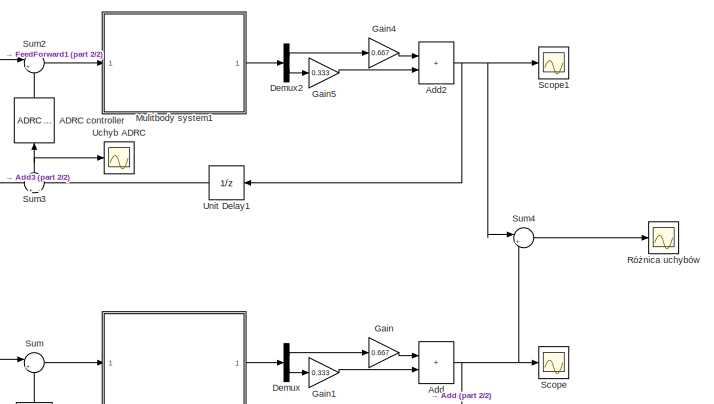
[diagram: root canvas - part 1/2, middle right region]
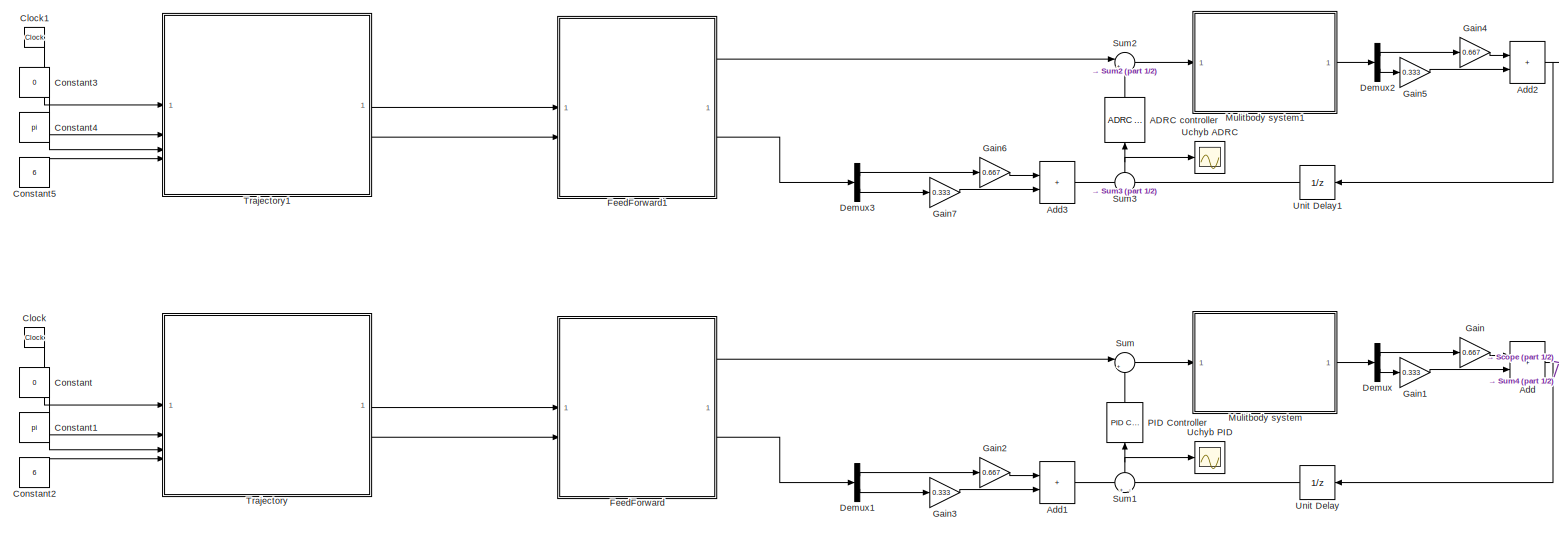
[diagram: root canvas - part 2/2, most of the canvas]
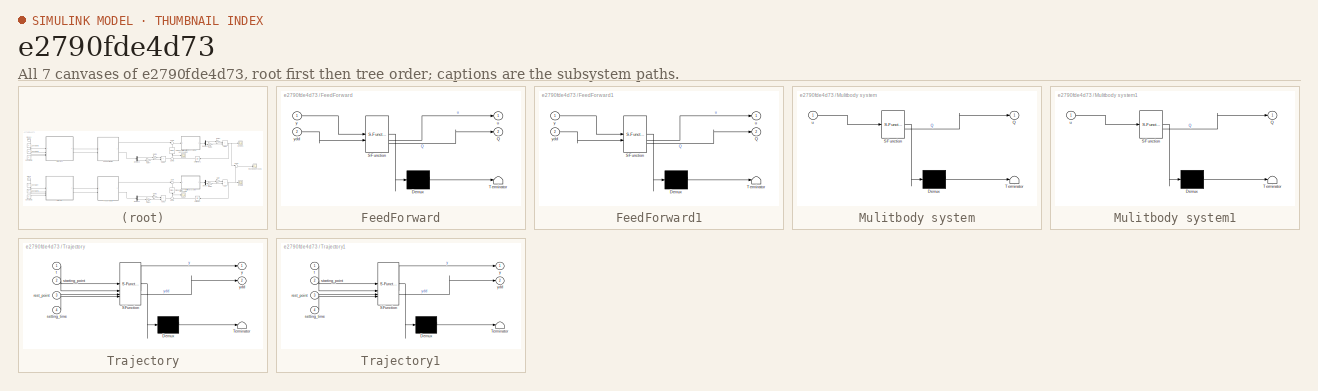
[diagram: thumbnail index - all 7 canvases of the model, root first then tree order]
MODEL slx_e2790fde4d73
KIND model
CONFIG AbsTol = auto
CONFIG EnableMultiTasking = off
CONFIG FixedStep = 0.01
CONFIG MaxStep = 0.01
CONFIG MinStep = 0.001
CONFIG RelTol = 1e-3
CONFIG SampleTimeConstraint = Unconstrained
CONFIG SolverName = ode1be
CONFIG StartTime = 0.0
CONFIG StopTime = 10.0
BLOCK [Reference] ADRC controller  REF=adrc_toolbox_library/ADRC controller
  NameLocation = right
  SourceBlock = adrc_toolbox_library/ADRC controller
  SourceProductName = ADRC Toolbox
  SourceType = ADRC controller
BLOCK [Sum] Add
  IconShape = rectangular
BLOCK [Sum] Add1
  IconShape = rectangular
BLOCK [Sum] Add2
  IconShape = rectangular
BLOCK [Sum] Add3
  IconShape = rectangular
BLOCK [Clock] Clock
  Decimation = 1
BLOCK [Clock] Clock1
  Decimation = 1
BLOCK [Constant] Constant
  Value = 0
BLOCK [Constant] Constant1
  Value = pi
BLOCK [Constant] Constant2
  Value = 6
BLOCK [Constant] Constant3
  Value = 0
BLOCK [Constant] Constant4
  Value = pi
BLOCK [Constant] Constant5
  Value = 6
BLOCK [Demux] Demux
  Outputs = 2
BLOCK [Demux] Demux1
  Outputs = 2
BLOCK [Demux] Demux2
  Outputs = 2
BLOCK [Demux] Demux3
  Outputs = 2
BLOCK [SubSystem] FeedForward
  ErrorFcn = Stateflow.Translate.translate
  PermitHierarchicalResolution = ExplicitOnly
  SFBlockType = MATLAB Function
  TreatAsAtomicUnit = on
BLOCK [Demux] FeedForward/ Demux 
  Outputs = 1
BLOCK [S-Function] FeedForward/ SFunction 
  EnableBusSupport = on
  FunctionName = sf_sfun
  PortCounts = [2 3]
  SFcnIsStateOwnerBlock = off
  SFunctionDeploymentMode = off
  Tag = Stateflow S-Function 1
BLOCK [Terminator] FeedForward/ Terminator 
BLOCK [Outport] FeedForward/Q
  Port = 2
BLOCK [Outport] FeedForward/u
BLOCK [Inport] FeedForward/y
BLOCK [Inport] FeedForward/ydd
  Port = 2
BLOCK [SubSystem] FeedForward1
  ErrorFcn = Stateflow.Translate.translate
  PermitHierarchicalResolution = ExplicitOnly
  SFBlockType = MATLAB Function
  TreatAsAtomicUnit = on
BLOCK [Demux] FeedForward1/ Demux 
  Outputs = 1
BLOCK [S-Function] FeedForward1/ SFunction 
  EnableBusSupport = on
  FunctionName = sf_sfun
  PortCounts = [2 3]
  SFcnIsStateOwnerBlock = off
  SFunctionDeploymentMode = off
  Tag = Stateflow S-Function 4
BLOCK [Terminator] FeedForward1/ Terminator 
BLOCK [Outport] FeedForward1/Q
  Port = 2
BLOCK [Outport] FeedForward1/u
BLOCK [Inport] FeedForward1/y
BLOCK [Inport] FeedForward1/ydd
  Port = 2
BLOCK [Gain] Gain
  Gain = 0.667
BLOCK [Gain] Gain1
  Gain = 0.333
BLOCK [Gain] Gain2
  Gain = 0.667
BLOCK [Gain] Gain3
  Gain = 0.333
BLOCK [Gain] Gain4
  Gain = 0.667
BLOCK [Gain] Gain5
  Gain = 0.333
BLOCK [Gain] Gain6
  Gain = 0.667
BLOCK [Gain] Gain7
  Gain = 0.333
BLOCK [SubSystem] Mulitbody system
  ErrorFcn = Stateflow.Translate.translate
  PermitHierarchicalResolution = ExplicitOnly
  SFBlockType = MATLAB Function
  TreatAsAtomicUnit = on
BLOCK [Demux] Mulitbody system/ Demux 
  Outputs = 1
BLOCK [S-Function] Mulitbody system/ SFunction 
  EnableBusSupport = on
  FunctionName = sf_sfun
  PortCounts = [1 2]
  SFcnIsStateOwnerBlock = off
  SFunctionDeploymentMode = off
  Tag = Stateflow S-Function 3
BLOCK [Terminator] Mulitbody system/ Terminator 
BLOCK [Outport] Mulitbody system/Q
BLOCK [Inport] Mulitbody system/u
BLOCK [SubSystem] Mulitbody system1
  ErrorFcn = Stateflow.Translate.translate
  PermitHierarchicalResolution = ExplicitOnly
  SFBlockType = MATLAB Function
  TreatAsAtomicUnit = on
BLOCK [Demux] Mulitbody system1/ Demux 
  Outputs = 1
BLOCK [S-Function] Mulitbody system1/ SFunction 
  EnableBusSupport = on
  FunctionName = sf_sfun
  PortCounts = [1 2]
  SFcnIsStateOwnerBlock = off
  SFunctionDeploymentMode = off
  Tag = Stateflow S-Function 5
BLOCK [Terminator] Mulitbody system1/ Terminator 
BLOCK [Outport] Mulitbody system1/Q
BLOCK [Inport] Mulitbody system1/u
BLOCK [Reference] PID Controller  REF=slpidlib/PID Controller
  LibrarySourceBlock = simulink/Continuous/PID Controller
  NameLocation = right
  SourceBlock = slpidlib/PID Controller
  SourceType = PID 1dof
BLOCK [Scope] Różnica uchybów
  Floating = off
  NumInputPorts = 1
  ScopeSpecificationString = Simulink.scopes.TimeScopeBlockCfg('CurrentConfiguration', extmgr.ConfigurationSet(extmgr.Configuration('Core','General UI',true),extmgr.Configuration('Core','Source UI',true),extmgr.Configuration('Sources','WiredSimulink',true,'DataLoggingVariableName','ScopeData2'),extmgr.Configuration('Visuals','Time Domain',true,'SerializedDisplays',{struct('MinYLimReal','-0.00118','MaxYLimReal','0.00119','YLab...<+1482ch>
BLOCK [Scope] Scope
  Floating = off
  NumInputPorts = 1
  ScopeSpecificationString = Simulink.scopes.TimeScopeBlockCfg('CurrentConfiguration', extmgr.ConfigurationSet(extmgr.Configuration('Core','General UI',true),extmgr.Configuration('Core','Source UI',true),extmgr.Configuration('Sources','WiredSimulink',true),extmgr.Configuration('Visuals','Time Domain',true,'SerializedDisplays',{struct('MinYLimReal','-0.39273','MaxYLimReal','3.5346','YLabelReal','','MinYLimMag','0.00000','MaxYL...<+1408ch>
BLOCK [Scope] Scope1
  Floating = off
  NumInputPorts = 1
  ScopeSpecificationString = Simulink.scopes.TimeScopeBlockCfg('CurrentConfiguration', extmgr.ConfigurationSet(extmgr.Configuration('Core','General UI',true),extmgr.Configuration('Core','Source UI',true),extmgr.Configuration('Sources','WiredSimulink',true,'DataLoggingVariableName','ScopeData1'),extmgr.Configuration('Visuals','Time Domain',true,'SerializedDisplays',{struct('MinYLimReal','-0.39273','MaxYLimReal','3.5346','YLabe...<+1447ch>
BLOCK [Sum] Sum
  Inputs = |++
BLOCK [Sum] Sum1
  Inputs = +|-
  NameLocation = right
BLOCK [Sum] Sum2
  Inputs = |++
BLOCK [Sum] Sum3
  Inputs = +|-
  NameLocation = right
BLOCK [Sum] Sum4
  Inputs = |+-
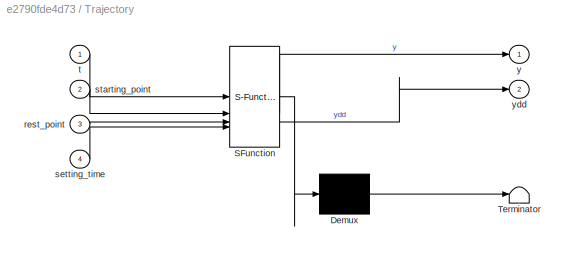
BLOCK [SubSystem] Trajectory
  ErrorFcn = Stateflow.Translate.translate
  PermitHierarchicalResolution = ExplicitOnly
  SFBlockType = MATLAB Function
  TreatAsAtomicUnit = on
BLOCK [Demux] Trajectory/ Demux 
  Outputs = 1
BLOCK [S-Function] Trajectory/ SFunction 
  EnableBusSupport = on
  FunctionName = sf_sfun
  PortCounts = [4 3]
  SFcnIsStateOwnerBlock = off
  SFunctionDeploymentMode = off
  Tag = Stateflow S-Function 2
BLOCK [Terminator] Trajectory/ Terminator 
BLOCK [Inport] Trajectory/rest_point
  Port = 3
BLOCK [Inport] Trajectory/setting_time
  Port = 4
BLOCK [Inport] Trajectory/starting_point
  Port = 2
BLOCK [Inport] Trajectory/t
BLOCK [Outport] Trajectory/y
BLOCK [Outport] Trajectory/ydd
  Port = 2
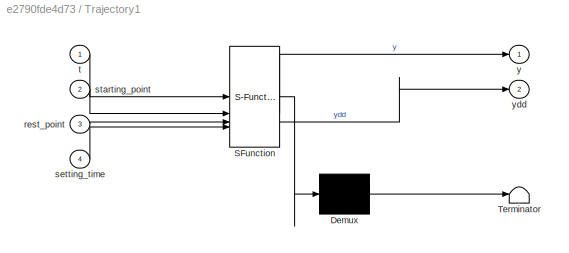
BLOCK [SubSystem] Trajectory1
  ErrorFcn = Stateflow.Translate.translate
  PermitHierarchicalResolution = ExplicitOnly
  SFBlockType = MATLAB Function
  TreatAsAtomicUnit = on
BLOCK [Demux] Trajectory1/ Demux 
  Outputs = 1
BLOCK [S-Function] Trajectory1/ SFunction 
  EnableBusSupport = on
  FunctionName = sf_sfun
  PortCounts = [4 3]
  SFcnIsStateOwnerBlock = off
  SFunctionDeploymentMode = off
  Tag = Stateflow S-Function 6
BLOCK [Terminator] Trajectory1/ Terminator 
BLOCK [Inport] Trajectory1/rest_point
  Port = 3
BLOCK [Inport] Trajectory1/setting_time
  Port = 4
BLOCK [Inport] Trajectory1/starting_point
  Port = 2
BLOCK [Inport] Trajectory1/t
BLOCK [Outport] Trajectory1/y
BLOCK [Outport] Trajectory1/ydd
  Port = 2
BLOCK [Scope] Uchyb ADRC
  Floating = off
  NumInputPorts = 1
  ScopeSpecificationString = Simulink.scopes.TimeScopeBlockCfg('CurrentConfiguration', extmgr.ConfigurationSet(extmgr.Configuration('Core','General UI',true),extmgr.Configuration('Core','Source UI',true),extmgr.Configuration('Sources','WiredSimulink',true,'DataLoggingVariableName','ScopeData4'),extmgr.Configuration('Visuals','Time Domain',true,'SerializedDisplays',{struct('MinYLimReal','-0.00024','MaxYLimReal','0.00021','YLab...<+1482ch>
BLOCK [Scope] Uchyb PID
  Floating = off
  NumInputPorts = 1
  ScopeSpecificationString = Simulink.scopes.TimeScopeBlockCfg('CurrentConfiguration', extmgr.ConfigurationSet(extmgr.Configuration('Core','General UI',true),extmgr.Configuration('Core','Source UI',true),extmgr.Configuration('Sources','WiredSimulink',true,'DataLoggingVariableName','ScopeData3'),extmgr.Configuration('Visuals','Time Domain',true,'SerializedDisplays',{struct('MinYLimReal','-0.001','MaxYLimReal','0.0011','YLabelR...<+1474ch>
BLOCK [UnitDelay] Unit Delay
  HasFrameUpgradeWarning = on
  SampleTime = -1
BLOCK [UnitDelay] Unit Delay1
  HasFrameUpgradeWarning = on
  SampleTime = -1
LINE ADRC controller:1 -> Sum2:2
LINE Add1:1 -> Sum1:1
NET Add2:1 -> Scope1:1, Sum4:1, Unit Delay1:1
LINE Add3:1 -> Sum3:1
NET Add:1 -> Scope:1, Sum4:2, Unit Delay:1
LINE Clock1:1 -> Trajectory1:1
LINE Clock:1 -> Trajectory:1
LINE Constant1:1 -> Trajectory:3
LINE Constant2:1 -> Trajectory:4
LINE Constant3:1 -> Trajectory1:2
LINE Constant4:1 -> Trajectory1:3
LINE Constant5:1 -> Trajectory1:4
LINE Constant:1 -> Trajectory:2
LINE Demux1:1 -> Gain2:1
LINE Demux1:2 -> Gain3:1
LINE Demux2:1 -> Gain4:1
LINE Demux2:2 -> Gain5:1
LINE Demux3:1 -> Gain6:1
LINE Demux3:2 -> Gain7:1
LINE Demux:1 -> Gain:1
LINE Demux:2 -> Gain1:1
LINE FeedForward1:1 -> Sum2:1
LINE FeedForward1:2 -> Demux3:1
LINE FeedForward:1 -> Sum:1
LINE FeedForward:2 -> Demux1:1
LINE Gain1:1 -> Add:2
LINE Gain2:1 -> Add1:1
LINE Gain3:1 -> Add1:2
LINE Gain4:1 -> Add2:1
LINE Gain5:1 -> Add2:2
LINE Gain6:1 -> Add3:1
LINE Gain7:1 -> Add3:2
LINE Gain:1 -> Add:1
LINE Mulitbody system1:1 -> Demux2:1
LINE Mulitbody system:1 -> Demux:1
LINE PID Controller:1 -> Sum:2
NET Sum1:1 -> PID Controller:1, Uchyb PID:1
LINE Sum2:1 -> Mulitbody system1:1
NET Sum3:1 -> ADRC controller:1, Uchyb ADRC:1
LINE Sum4:1 -> Różnica uchybów:1
LINE Sum:1 -> Mulitbody system:1
LINE Trajectory1:1 -> FeedForward1:1
LINE Trajectory1:2 -> FeedForward1:2
LINE Trajectory:1 -> FeedForward:1
LINE Trajectory:2 -> FeedForward:2
LINE Unit Delay1:1 -> Sum3:2
LINE Unit Delay:1 -> Sum1:2
note: NET lines group one-source signal fan-out (src -> all destinations, sorted); 1:1 wires keep LINE
CHART FeedForward states=1 transitions=1
  STATE_LABEL 'eML_blk_kernel()'
  STATE_LABEL 'SCRIPT:\nfunction [u, Q] = Inverse_Dynamics(y, ydd)\n    % Define output sizes for Simulink\n    Q = zeros(2, 1); % Ensure Q is a 2x1 vector\n    V = zeros(2, 1); % Ensure V is a 2x1 vector\n    u = zeros(1, 1); % Ensure u is a scalar\n    \n    % Declare persistent variables for initial guesses\n    persistent initial_guess;\n    \n    if isempty(initial_guess)\n        % Initialize at first call\n        in...<+1995ch>'
CHART Trajectory states=1 transitions=1
  STATE_LABEL 'eML_blk_kernel()'
  STATE_LABEL 'SCRIPT:\nfunction [y, ydd] = Trajectory(t, starting_point, rest_point, setting_time)\ny = starting_point + (rest_point - starting_point)*((126*t^5)/setting_time^5 - (420*t^6)/setting_time^6 + (540*t^7)/setting_time.^7 - (315*t^8)/setting_time^8 + (70*t^9)/setting_time^9);\nydd = (rest_point - starting_point)*((2520*t^3)/setting_time^5 - (12600*t^4)/setting_time^6 + (22680*t^5)/setting_time^7 - (17640...<+124ch>'
CHART Mulitbody system states=1 transitions=1
  STATE_LABEL 'eML_blk_kernel()'
  STATE_LABEL "SCRIPT:\nfunction Q  = Forward_Dynamics(u)\n    \n    % Declare persistent variables for initial guesses\n    persistent initial_guess;\n    \n    if isempty(initial_guess)\n        % Initialize at first call\n        initial_guess = [0, 0; 0, 0]; \n    end\n    q = initial_guess(1:2)';\n    v = initial_guess(3:4)';\n    l1 = 1;\n    l2 = 1;\n    m1 = 2;\n    m2 = 2;\n    c = 1;\n    d = 0.2;\n    J1 = m1 * l1^2 / ...<+620ch>"
CHART FeedForward1 states=1 transitions=1
  STATE_LABEL 'eML_blk_kernel()'
  STATE_LABEL 'SCRIPT:\nfunction [u, Q] = Inverse_Dynamics(y, ydd)\n    % Define output sizes for Simulink\n    Q = zeros(2, 1); % Ensure Q is a 2x1 vector\n    V = zeros(2, 1); % Ensure V is a 2x1 vector\n    u = zeros(1, 1); % Ensure u is a scalar\n    \n    % Declare persistent variables for initial guesses\n    persistent initial_guess;\n    \n    if isempty(initial_guess)\n        % Initialize at first call\n        in...<+1995ch>'
CHART Mulitbody system1 states=1 transitions=1
  STATE_LABEL 'eML_blk_kernel()'
  STATE_LABEL "SCRIPT:\nfunction Q  = Forward_Dynamics(u)\n    \n    % Declare persistent variables for initial guesses\n    persistent initial_guess;\n    \n    if isempty(initial_guess)\n        % Initialize at first call\n        initial_guess = [0, 0; 0, 0]; \n    end\n    q = initial_guess(1:2)';\n    v = initial_guess(3:4)';\n    l1 = 1;\n    l2 = 1;\n    m1 = 2;\n    m2 = 2;\n    c = 1;\n    d = 0.2;\n    J1 = m1 * l1^2 / ...<+620ch>"
CHART Trajectory1 states=1 transitions=1
  STATE_LABEL 'eML_blk_kernel()'
  STATE_LABEL 'SCRIPT:\nfunction [y, ydd] = Trajectory(t, starting_point, rest_point, setting_time)\ny = starting_point + (rest_point - starting_point)*((126*t^5)/setting_time^5 - (420*t^6)/setting_time^6 + (540*t^7)/setting_time.^7 - (315*t^8)/setting_time^8 + (70*t^9)/setting_time^9);\nydd = (rest_point - starting_point)*((2520*t^3)/setting_time^5 - (12600*t^4)/setting_time^6 + (22680*t^5)/setting_time^7 - (17640...<+124ch>'
CHART  states=0 transitions=0
CHART  states=0 transitions=0
CHART  states=0 transitions=0
CHART  states=0 transitions=0
CHART  states=0 transitions=0
CHART  states=0 transitions=0
